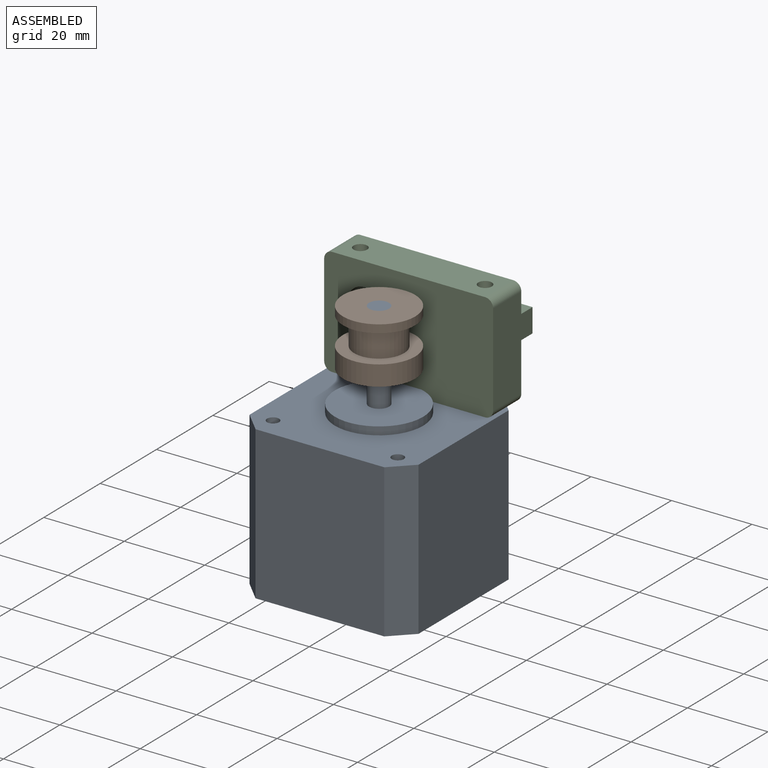
[diagram: assembled view]
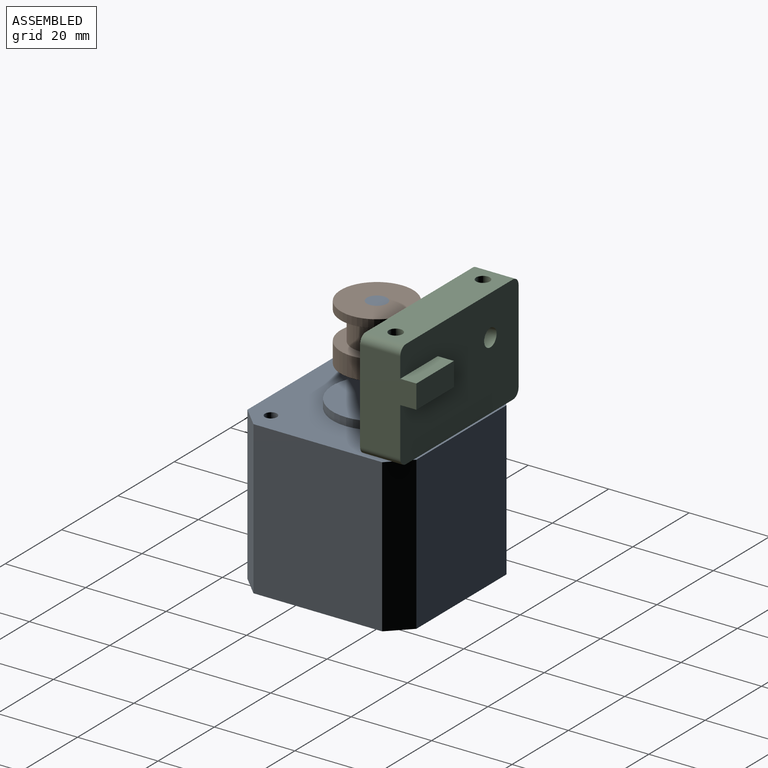
[diagram: assembled view, second angle]
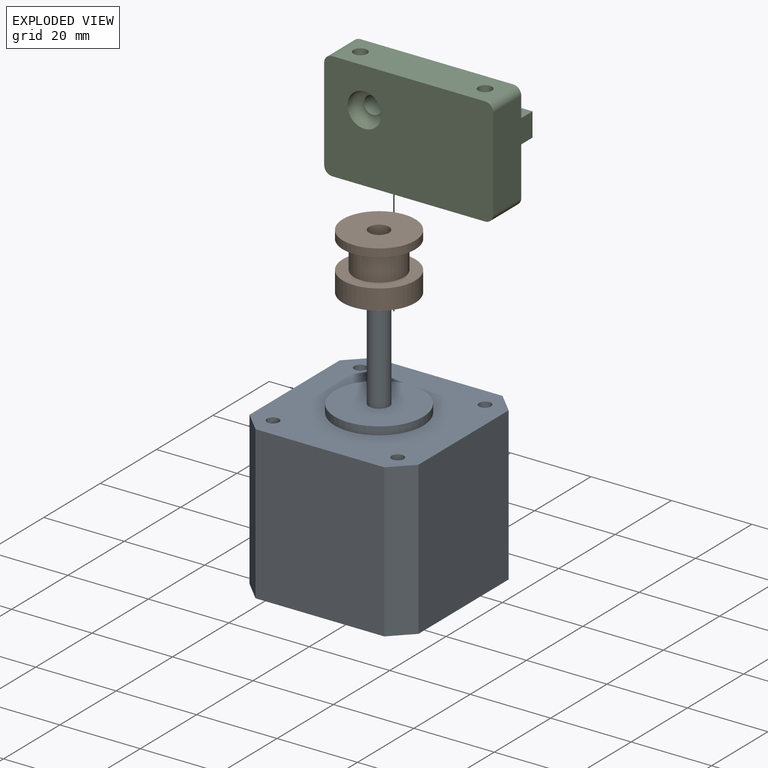
[diagram: exploded view]
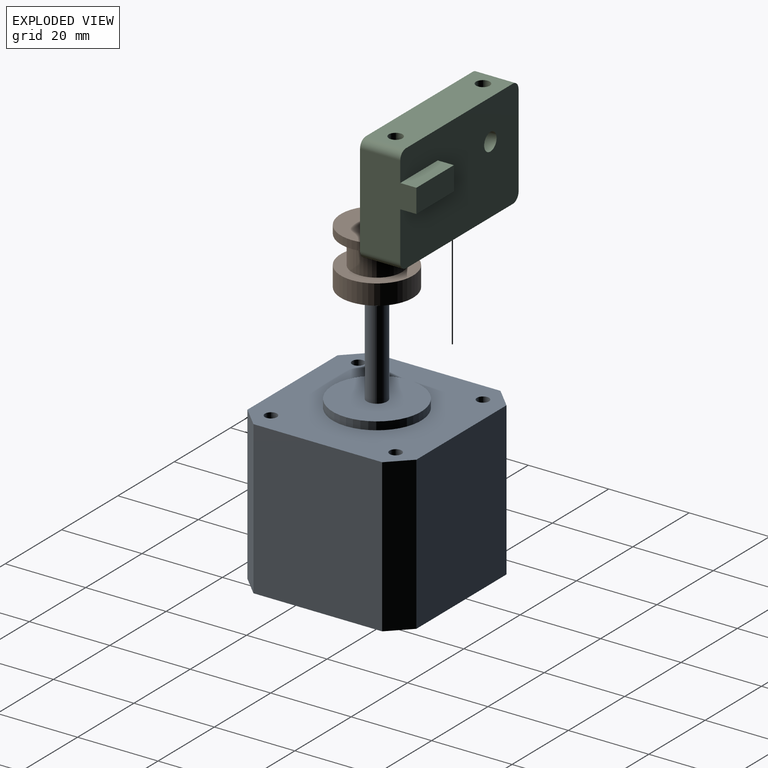
[diagram: exploded view, second angle]
ASSEMBLY  parts=3 mates=2
PART A: 22 faces, bbox 42x42x62 mm
  f0: plane 38x32mm, normal (-1,0,0), area 1216mm2, adj f4,f5,f8,f9
  f1: plane 38x32mm, normal (0,-1,0), area 1216mm2, adj f4,f5,f7,f9
  f2: plane 38x32mm, normal (1,0,0), area 1216mm2, adj f4,f5,f6,f7
  f3: plane 38x32mm, normal (0,1,0), area 1216mm2, adj f4,f5,f6,f8
  f4: plane 42x42mm, normal (0,0,1), area 1305.6mm2, adj f0,f1,f2,f3,f6,f7,f8,f9
  f5: plane 42x42mm, normal (0,0,-1), area 1714mm2, adj f0,f1,f2,f3,f6,f7,f8,f9
  f6: plane 38x5mm, normal (0.71,0.71,0), area 268.7mm2, adj f2,f3,f4,f5
  f7: plane 38x5mm, normal (0.71,-0.71,0), area 268.7mm2, adj f1,f2,f4,f5
  f8: plane 38x5mm, normal (-0.71,0.71,0), area 268.7mm2, adj f0,f3,f4,f5
  f9: plane 38x5mm, normal (-0.71,-0.71,0), area 268.7mm2, adj f0,f1,f4,f5
  f10: cylinder r=11mm len=22mm, axis (0,0,-1), area 138.2mm2, adj f4,f11
  f11: plane 22x22mm, normal (0,0,1), area 360.5mm2, adj f10,f12
  f12: cylinder r=2.5mm len=22mm, axis (0,0,-1), area 345.6mm2, adj f11,f13
  f13: plane 5x5mm, normal (0,0,1), area 19.6mm2, adj f12
  f14: cylinder r=1.5mm len=25mm, axis (0,0,1), area 235.6mm2, adj f4,f15
  f15: plane 3x3mm, normal (0,0,1), area 7.1mm2, adj f14
  f16: cylinder r=1.5mm len=25mm, axis (0,0,1), area 235.6mm2, adj f4,f17
  f17: plane 3x3mm, normal (0,0,1), area 7.1mm2, adj f16
  f18: cylinder r=1.5mm len=25mm, axis (0,0,1), area 235.6mm2, adj f4,f19
  f19: plane 3x3mm, normal (0,0,1), area 7.1mm2, adj f18
  f20: cylinder r=1.5mm len=25mm, axis (0,0,1), area 235.6mm2, adj f4,f21
  f21: plane 3x3mm, normal (0,0,1), area 7.1mm2, adj f20
PART B: 8 faces, bbox 18x18x14 mm
  f0: cylinder r=9mm len=18mm, axis (0,0,-1), area 282.7mm2, adj f1,f2
  f1: plane 18x18mm, normal (0,0,1), area 133.7mm2, adj f0,f3
  f2: plane 18x18mm, normal (0,0,-1), area 234.8mm2, adj f0,f7
  f3: cylinder r=6.2mm len=12.4mm, axis (0,0,-1), area 272.7mm2, adj f1,f6
  f4: cylinder r=9mm len=18mm, axis (0,0,-1), area 113.1mm2, adj f5,f6
  f5: plane 18x18mm, normal (0,0,1), area 234.8mm2, adj f4,f7
  f6: plane 18x18mm, normal (0,0,-1), area 133.7mm2, adj f3,f4
  f7: cylinder r=2.5mm len=14mm, axis (0,0,1), area 219.9mm2, adj f2,f5
PART C: 19 faces, bbox 42x14.4x27 mm
  f0: cylinder r=2.2mm len=7mm, axis (0,1,0), area 96.8mm2, adj f1,f14
  f1: plane 42x27mm, normal (0,1,0), area 1036.8mm2, adj f0,f2,f4,f5,f6,f9,f10,f11
  f2: plane 23x10mm, normal (-1,0,0), area 230mm2, adj f1,f3,f15,f17
  f3: plane 42x27mm, normal (0,-1,0), area 1075.1mm2, adj f2,f4,f5,f6,f13,f15,f16,f17
  f4: plane 23x14mm, normal (1,0,0), area 253.6mm2, adj f1,f3,f9,f11,f12,f16,f18
  f5: plane 38x10mm, normal (0,0,1), area 361.8mm2, adj f1,f3,f7,f8,f17,f18
  f6: plane 38x10mm, normal (0,0,-1), area 361.8mm2, adj f1,f3,f7,f8,f15,f16
  f7: cylinder r=1.7mm len=27mm, axis (0,0,1), area 288.4mm2, adj f5,f6
  f8: cylinder r=1.7mm len=27mm, axis (0,0,1), area 288.4mm2, adj f5,f6
  f9: plane 13.31x4mm, normal (0,0,-1), area 53.3mm2, adj f1,f4,f10,f12
  f10: plane 5.9x4mm, normal (-1,0,0), area 23.6mm2, adj f1,f9,f11,f12
  f11: plane 13.31x4mm, normal (0,0,1), area 53.3mm2, adj f1,f4,f10,f12
  f12: plane 13.31x5.9mm, normal (0,1,0), area 78.6mm2, adj f4,f9,f10,f11
  f13: cylinder r=4.2mm len=8.4mm, axis (0,-1,0), area 26.4mm2, adj f3,f14
  f14: torus R=2.2mm, axis (0,-1,0), area 68.6mm2, adj f0,f13
  f15: cylinder r=2mm len=10mm, axis (0,-1,0), area 31.4mm2, adj f1,f2,f3,f6
  f16: cylinder r=2mm len=10mm, axis (0,1,0), area 31.4mm2, adj f1,f3,f4,f6
  f17: cylinder r=2mm len=10mm, axis (0,1,0), area 31.4mm2, adj f1,f2,f3,f5
  f18: cylinder r=2mm len=10mm, axis (0,-1,0), area 31.4mm2, adj f1,f3,f4,f5
PLACE A t=(-19.22,-27.33,-36.28)mm
PLACE B t=(1.78,-6.33,11.72)mm
PLACE C t=(-2.36,4.17,1.72)mm
MATE fastened A.f20 <-> C.f8  axis (0,0,1) through (-13.72,9.17,1.72)mm
MATE fastened B.f0 <-> A.f10  axis (0,0,1) through (1.78,-6.33,25.72)mm
